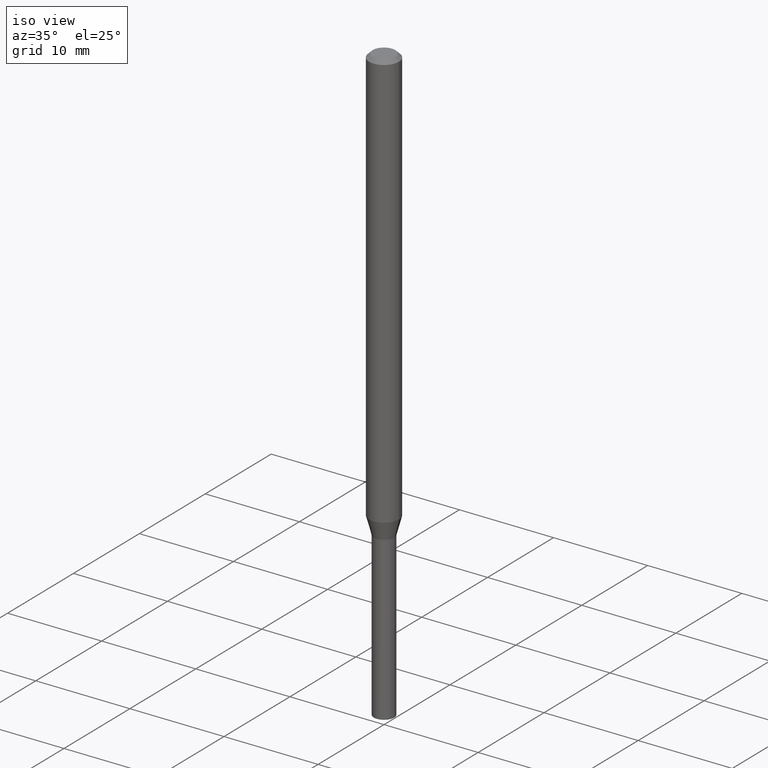
[diagram: clean part render]
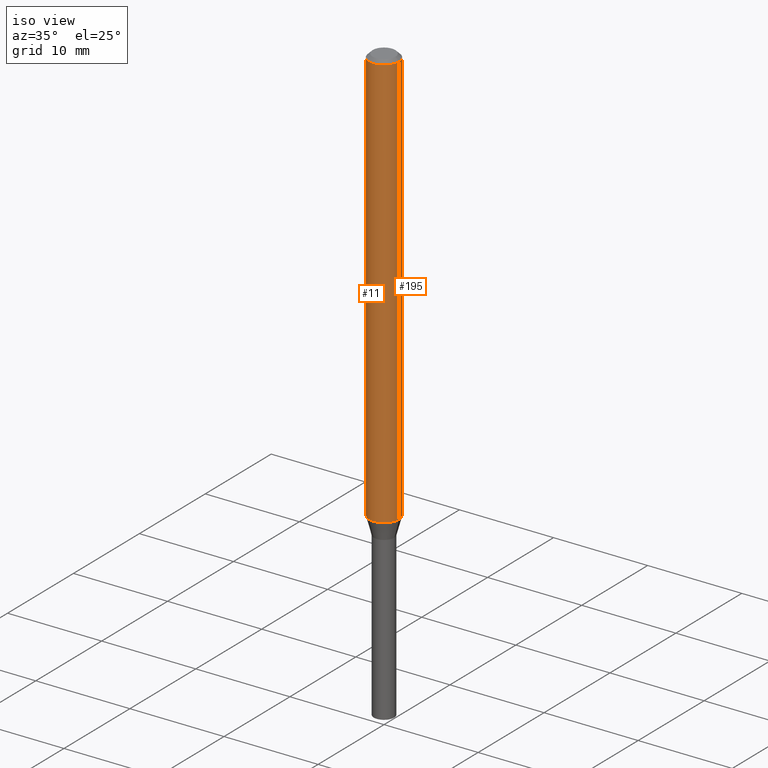
[diagram: same view with one multi-face feature highlighted, each face labeled with its STEP entity id]
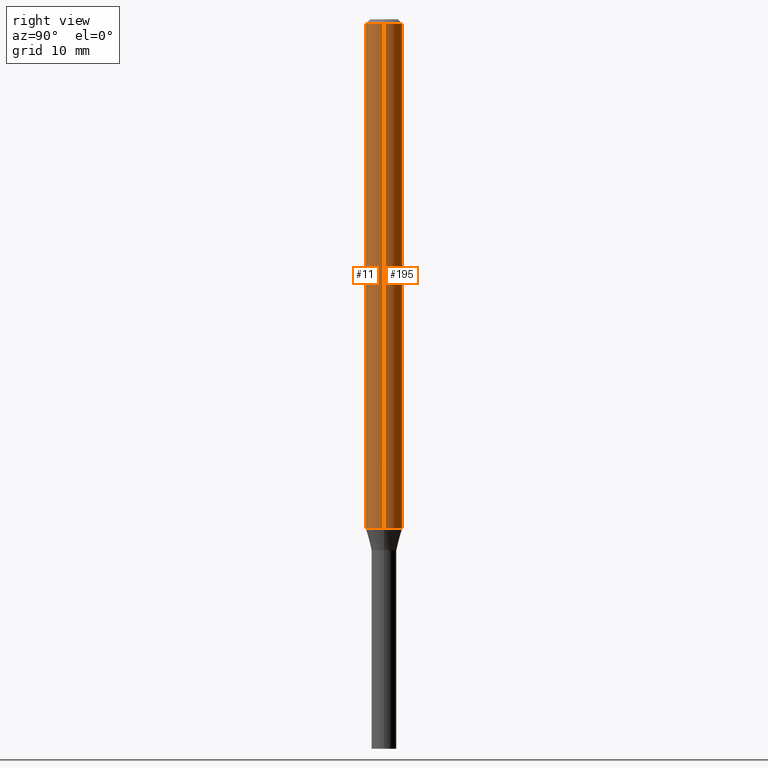
[diagram: same view with one multi-face feature highlighted, each face labeled with its STEP entity id]
A machine part, iso view. The highlighted faces form ONE feature: a constant-radius fillet chain: 2 tangent blend faces with common blend radius 1.5875 mm. The faces share edges in the B-rep.
A second angle (right view) of the same feature is appended — it is thin or edge-on in the first view.
Their STEP definitions:
[1] entity #11 (Cylinder):
#1 = FACE_OUTER_BOUND ( 'NONE', #41, .T. ) ;
#2 = AXIS2_PLACEMENT_3D ( 'NONE', #100, #132, #173 ) ;
#11 = ADVANCED_FACE ( 'NONE', ( #1 ), #449, .T. ) ;
#26 = LINE ( 'NONE', #424, #126 ) ;
#41 = EDGE_LOOP ( 'NONE', ( #460, #257, #135, #414 ) ) ;
#51 = CARTESIAN_POINT ( 'NONE',  ( 0.06250000000000000000, -4.888073874380388472E-16, -0.01499999999999999944 ) ) ;
#78 = CARTESIAN_POINT ( 'NONE',  ( -0.06250000000000000000, -2.629041061036111238E-15, -0.01499999999999999944 ) ) ;
#89 = CARTESIAN_POINT ( 'NONE',  ( 3.668203209277705088E-31, -5.237222008264718399E-17, -0.01499999999999999944 ) ) ;
#100 = CARTESIAN_POINT ( 'NONE',  ( 4.268220950596793290E-29, -6.093888321689699445E-15, -1.745358983848622092 ) ) ;
#106 = AXIS2_PLACEMENT_3D ( 'NONE', #89, #153, #297 ) ;
#112 = EDGE_CURVE ( 'NONE', #177, #446, #427, .T. ) ;
#126 = VECTOR ( 'NONE', #162, 39.37007874015748143 ) ;
#132 = DIRECTION ( 'NONE',  ( -2.445468806185136597E-29, 3.491481338843145583E-15, 1.000000000000000000 ) ) ;
#135 = ORIENTED_EDGE ( 'NONE', *, *, #298, .T. ) ;
#153 = DIRECTION ( 'NONE',  ( -2.445468806185136597E-29, 3.491481338843145583E-15, 1.000000000000000000 ) ) ;
#162 = DIRECTION ( 'NONE',  ( -2.445468806185136877E-29, 3.491481338843145188E-15, 1.000000000000000000 ) ) ;
#170 = CARTESIAN_POINT ( 'NONE',  ( -0.06250000000000000000, 4.440892098500626162E-16, -3.074334431409316114E-30 ) ) ;
#171 = EDGE_CURVE ( 'NONE', #177, #327, #283, .T. ) ;
#173 = DIRECTION ( 'NONE',  ( 1.000000000000000000, -6.982962677686262766E-15, 0.000000000000000000 ) ) ;
#177 = VERTEX_POINT ( 'NONE', #251 ) ;
#206 = VECTOR ( 'NONE', #388, 39.37007874015748143 ) ;
#251 = CARTESIAN_POINT ( 'NONE',  ( -0.06250000000000000000, -5.649799111839637618E-15, -1.745358983848622092 ) ) ;
#257 = ORIENTED_EDGE ( 'NONE', *, *, #171, .T. ) ;
#283 = CIRCLE ( 'NONE', #2, 0.06250000000000000000 ) ;
#297 = DIRECTION ( 'NONE',  ( 1.000000000000000000, -6.982962677686266711E-15, 0.000000000000000000 ) ) ;
#298 = EDGE_CURVE ( 'NONE', #327, #392, #26, .T. ) ;
#327 = VERTEX_POINT ( 'NONE', #425 ) ;
#337 = CARTESIAN_POINT ( 'NONE',  ( 0.000000000000000000, 0.000000000000000000, 0.000000000000000000 ) ) ;
#365 = EDGE_CURVE ( 'NONE', #446, #392, #385, .T. ) ;
#372 = AXIS2_PLACEMENT_3D ( 'NONE', #337, #443, #408 ) ;
#385 = CIRCLE ( 'NONE', #106, 0.06250000000000000000 ) ;
#388 = DIRECTION ( 'NONE',  ( -2.445468806185136877E-29, 3.491481338843145188E-15, 1.000000000000000000 ) ) ;
#392 = VERTEX_POINT ( 'NONE', #51 ) ;
#408 = DIRECTION ( 'NONE',  ( 1.000000000000000000, -6.982962677686266711E-15, 4.876176775795935793E-29 ) ) ;
#414 = ORIENTED_EDGE ( 'NONE', *, *, #365, .F. ) ;
#424 = CARTESIAN_POINT ( 'NONE',  ( 0.06250000000000000000, -4.364351673553916694E-16, 3.047610484872459871E-30 ) ) ;
#425 = CARTESIAN_POINT ( 'NONE',  ( 0.06250000000000000000, -6.530323489045091115E-15, -1.745358983848622092 ) ) ;
#427 = LINE ( 'NONE', #170, #206 ) ;
#443 = DIRECTION ( 'NONE',  ( -2.445468806185136597E-29, 3.491481338843145583E-15, 1.000000000000000000 ) ) ;
#446 = VERTEX_POINT ( 'NONE', #78 ) ;
#449 = CYLINDRICAL_SURFACE ( 'NONE', #372, 0.06250000000000000000 ) ;
#460 = ORIENTED_EDGE ( 'NONE', *, *, #112, .F. ) ;
[2] entity #195 (Cylinder):
#23 = AXIS2_PLACEMENT_3D ( 'NONE', #74, #437, #186 ) ;
#26 = LINE ( 'NONE', #424, #126 ) ;
#34 = FACE_OUTER_BOUND ( 'NONE', #43, .T. ) ;
#40 = AXIS2_PLACEMENT_3D ( 'NONE', #168, #238, #127 ) ;
#43 = EDGE_LOOP ( 'NONE', ( #448, #357, #152, #288 ) ) ;
#51 = CARTESIAN_POINT ( 'NONE',  ( 0.06250000000000000000, -4.888073874380388472E-16, -0.01499999999999999944 ) ) ;
#71 = CYLINDRICAL_SURFACE ( 'NONE', #121, 0.06250000000000000000 ) ;
#74 = CARTESIAN_POINT ( 'NONE',  ( 4.268220950596793290E-29, -6.093888321689699445E-15, -1.745358983848622092 ) ) ;
#78 = CARTESIAN_POINT ( 'NONE',  ( -0.06250000000000000000, -2.629041061036111238E-15, -0.01499999999999999944 ) ) ;
#112 = EDGE_CURVE ( 'NONE', #177, #446, #427, .T. ) ;
#121 = AXIS2_PLACEMENT_3D ( 'NONE', #362, #245, #211 ) ;
#126 = VECTOR ( 'NONE', #162, 39.37007874015748143 ) ;
#127 = DIRECTION ( 'NONE',  ( 1.000000000000000000, -6.982962677686266711E-15, 0.000000000000000000 ) ) ;
#152 = ORIENTED_EDGE ( 'NONE', *, *, #421, .F. ) ;
#154 = EDGE_CURVE ( 'NONE', #327, #177, #224, .T. ) ;
#161 = CIRCLE ( 'NONE', #40, 0.06250000000000000000 ) ;
#162 = DIRECTION ( 'NONE',  ( -2.445468806185136877E-29, 3.491481338843145188E-15, 1.000000000000000000 ) ) ;
#168 = CARTESIAN_POINT ( 'NONE',  ( 3.668203209277705088E-31, -5.237222008264718399E-17, -0.01499999999999999944 ) ) ;
#170 = CARTESIAN_POINT ( 'NONE',  ( -0.06250000000000000000, 4.440892098500626162E-16, -3.074334431409316114E-30 ) ) ;
#177 = VERTEX_POINT ( 'NONE', #251 ) ;
#186 = DIRECTION ( 'NONE',  ( 1.000000000000000000, -6.982962677686262766E-15, 0.000000000000000000 ) ) ;
#195 = ADVANCED_FACE ( 'NONE', ( #34 ), #71, .T. ) ;
#206 = VECTOR ( 'NONE', #388, 39.37007874015748143 ) ;
#211 = DIRECTION ( 'NONE',  ( 1.000000000000000000, -6.982962677686266711E-15, 4.876176775795935793E-29 ) ) ;
#224 = CIRCLE ( 'NONE', #23, 0.06250000000000000000 ) ;
#238 = DIRECTION ( 'NONE',  ( -2.445468806185136597E-29, 3.491481338843145583E-15, 1.000000000000000000 ) ) ;
#245 = DIRECTION ( 'NONE',  ( -2.445468806185136597E-29, 3.491481338843145583E-15, 1.000000000000000000 ) ) ;
#251 = CARTESIAN_POINT ( 'NONE',  ( -0.06250000000000000000, -5.649799111839637618E-15, -1.745358983848622092 ) ) ;
#288 = ORIENTED_EDGE ( 'NONE', *, *, #298, .F. ) ;
#298 = EDGE_CURVE ( 'NONE', #327, #392, #26, .T. ) ;
#327 = VERTEX_POINT ( 'NONE', #425 ) ;
#357 = ORIENTED_EDGE ( 'NONE', *, *, #112, .T. ) ;
#362 = CARTESIAN_POINT ( 'NONE',  ( 0.000000000000000000, 0.000000000000000000, 0.000000000000000000 ) ) ;
#388 = DIRECTION ( 'NONE',  ( -2.445468806185136877E-29, 3.491481338843145188E-15, 1.000000000000000000 ) ) ;
#392 = VERTEX_POINT ( 'NONE', #51 ) ;
#421 = EDGE_CURVE ( 'NONE', #392, #446, #161, .T. ) ;
#424 = CARTESIAN_POINT ( 'NONE',  ( 0.06250000000000000000, -4.364351673553916694E-16, 3.047610484872459871E-30 ) ) ;
#425 = CARTESIAN_POINT ( 'NONE',  ( 0.06250000000000000000, -6.530323489045091115E-15, -1.745358983848622092 ) ) ;
#427 = LINE ( 'NONE', #170, #206 ) ;
#437 = DIRECTION ( 'NONE',  ( -2.445468806185136597E-29, 3.491481338843145583E-15, 1.000000000000000000 ) ) ;
#446 = VERTEX_POINT ( 'NONE', #78 ) ;
#448 = ORIENTED_EDGE ( 'NONE', *, *, #154, .T. ) ;